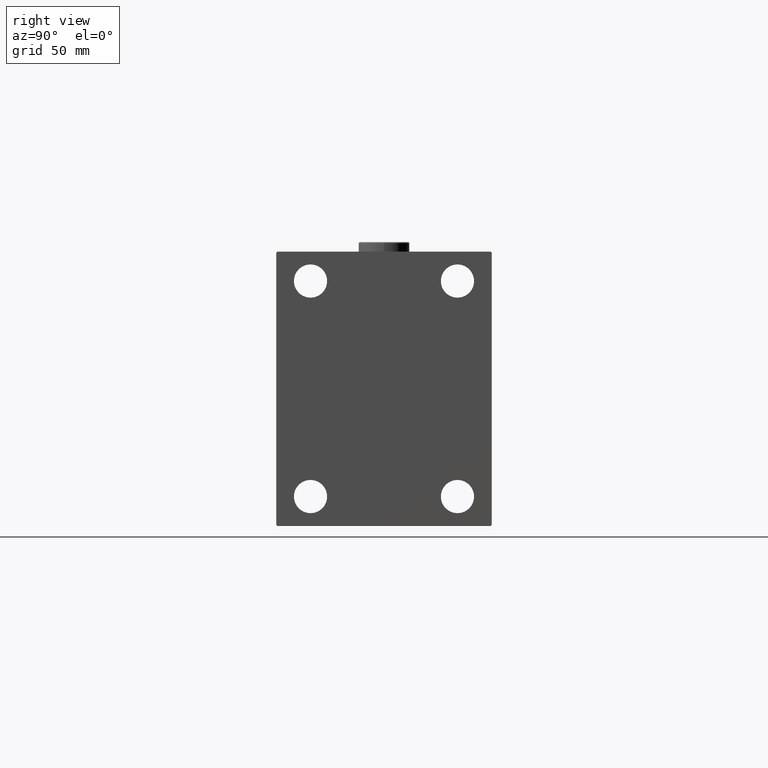
[diagram: clean part render]
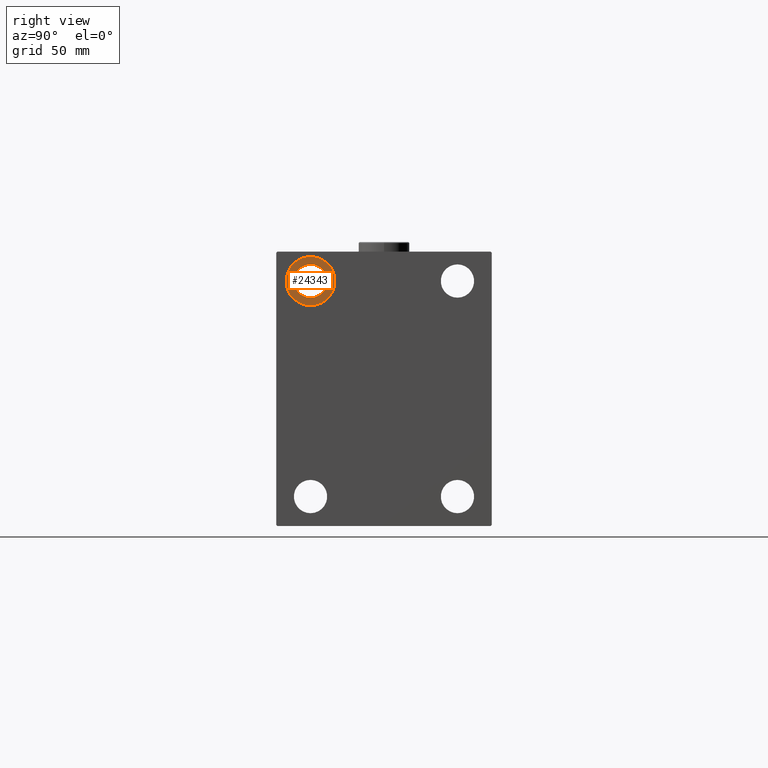
[diagram: same view with one face highlighted and labeled with its STEP entity id]
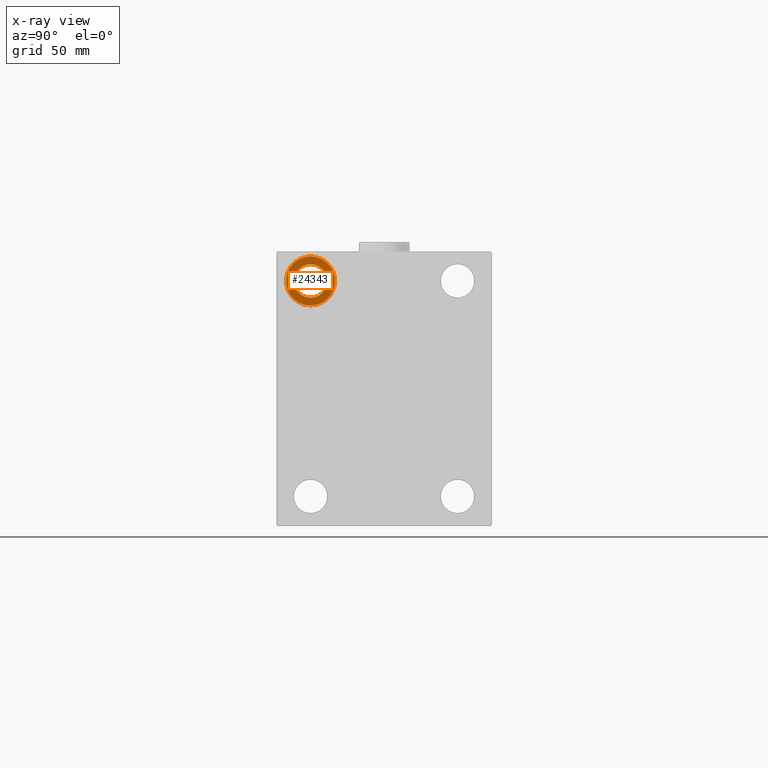
[diagram: x-ray of the same camera — body ghosted, the highlighted face saturated]
A machine part, right view. The second image highlights one B-rep face of the part: STEP entity #24343.
The next image is the same camera in x-ray: the body ghosted, the highlighted face saturated — about 0% of this face is hidden behind the body in this view.
In plain terms, the highlighted planar face has unit normal (1, 0, 0).
Its self-contained STEP definition (entity closure, byte-faithful):
#254 = CIRCLE ( 'NONE', #44320, 8.499999999999992895 ) ;
#2103 = AXIS2_PLACEMENT_3D ( 'NONE', #8971, #19695, #16127 ) ;
#2550 = PLANE ( 'NONE',  #30648 ) ;
#3151 = ORIENTED_EDGE ( 'NONE', *, *, #43845, .F. ) ;
#3225 = AXIS2_PLACEMENT_3D ( 'NONE', #23962, #6582, #21098 ) ;
#3384 = EDGE_CURVE ( 'NONE', #32814, #37462, #23003, .T. ) ;
#4767 = ORIENTED_EDGE ( 'NONE', *, *, #19145, .T. ) ;
#6528 = DIRECTION ( 'NONE',  ( 0.000000000000000000, 0.000000000000000000, 1.000000000000000000 ) ) ;
#6582 = DIRECTION ( 'NONE',  ( -1.000000000000000000, -0.000000000000000000, -0.000000000000000000 ) ) ;
#8181 = CIRCLE ( 'NONE', #2103, 12.49999999999999645 ) ;
#8971 = CARTESIAN_POINT ( 'NONE',  ( 236.0000000000000000, -37.50000000000000711, 55.00000000000000711 ) ) ;
#9924 = DIRECTION ( 'NONE',  ( 1.000000000000000000, 0.000000000000000000, -0.000000000000000000 ) ) ;
#10201 = VERTEX_POINT ( 'NONE', #42529 ) ;
#13735 = ORIENTED_EDGE ( 'NONE', *, *, #34748, .F. ) ;
#14198 = FACE_BOUND ( 'NONE', #21494, .T. ) ;
#14936 = CARTESIAN_POINT ( 'NONE',  ( 236.0000000000000000, -37.50000000000000711, 63.50000000000000000 ) ) ;
#16127 = DIRECTION ( 'NONE',  ( 0.000000000000000000, 0.000000000000000000, 1.000000000000000000 ) ) ;
#17068 = ORIENTED_EDGE ( 'NONE', *, *, #3384, .T. ) ;
#18880 = CARTESIAN_POINT ( 'NONE',  ( 236.0000000000000000, -37.50000000000000711, 55.00000000000000711 ) ) ;
#19145 = EDGE_CURVE ( 'NONE', #37462, #32814, #254, .T. ) ;
#19695 = DIRECTION ( 'NONE',  ( -1.000000000000000000, -0.000000000000000000, -0.000000000000000000 ) ) ;
#21098 = DIRECTION ( 'NONE',  ( 0.000000000000000000, 0.000000000000000000, -1.000000000000000000 ) ) ;
#21494 = EDGE_LOOP ( 'NONE', ( #4767, #17068 ) ) ;
#21980 = DIRECTION ( 'NONE',  ( -1.000000000000000000, -0.000000000000000000, -0.000000000000000000 ) ) ;
#23003 = CIRCLE ( 'NONE', #3225, 8.499999999999992895 ) ;
#23962 = CARTESIAN_POINT ( 'NONE',  ( 236.0000000000000000, -37.50000000000000711, 55.00000000000000711 ) ) ;
#24343 = ADVANCED_FACE ( 'NONE', ( #32025, #14198 ), #2550, .T. ) ;
#24616 = DIRECTION ( 'NONE',  ( -1.000000000000000000, -0.000000000000000000, -0.000000000000000000 ) ) ;
#25572 = CARTESIAN_POINT ( 'NONE',  ( 236.0000000000000000, -37.50000000000000711, 46.50000000000001421 ) ) ;
#25791 = AXIS2_PLACEMENT_3D ( 'NONE', #27703, #24616, #6528 ) ;
#27703 = CARTESIAN_POINT ( 'NONE',  ( 236.0000000000000000, -37.50000000000000711, 55.00000000000000711 ) ) ;
#28797 = EDGE_LOOP ( 'NONE', ( #3151, #13735 ) ) ;
#29908 = VERTEX_POINT ( 'NONE', #42540 ) ;
#30648 = AXIS2_PLACEMENT_3D ( 'NONE', #38715, #9924, #39411 ) ;
#32025 = FACE_OUTER_BOUND ( 'NONE', #28797, .T. ) ;
#32814 = VERTEX_POINT ( 'NONE', #25572 ) ;
#34748 = EDGE_CURVE ( 'NONE', #29908, #10201, #8181, .T. ) ;
#37462 = VERTEX_POINT ( 'NONE', #14936 ) ;
#38715 = CARTESIAN_POINT ( 'NONE',  ( 236.0000000000000000, 0.000000000000000000, 0.000000000000000000 ) ) ;
#39411 = DIRECTION ( 'NONE',  ( 0.000000000000000000, 0.000000000000000000, 1.000000000000000000 ) ) ;
#42529 = CARTESIAN_POINT ( 'NONE',  ( 236.0000000000000000, -37.50000000000000711, 42.50000000000000711 ) ) ;
#42540 = CARTESIAN_POINT ( 'NONE',  ( 236.0000000000000000, -37.50000000000000711, 67.50000000000000000 ) ) ;
#43845 = EDGE_CURVE ( 'NONE', #10201, #29908, #46266, .T. ) ;
#44300 = DIRECTION ( 'NONE',  ( 0.000000000000000000, 0.000000000000000000, -1.000000000000000000 ) ) ;
#44320 = AXIS2_PLACEMENT_3D ( 'NONE', #18880, #21980, #44300 ) ;
#46266 = CIRCLE ( 'NONE', #25791, 12.49999999999999645 ) ;